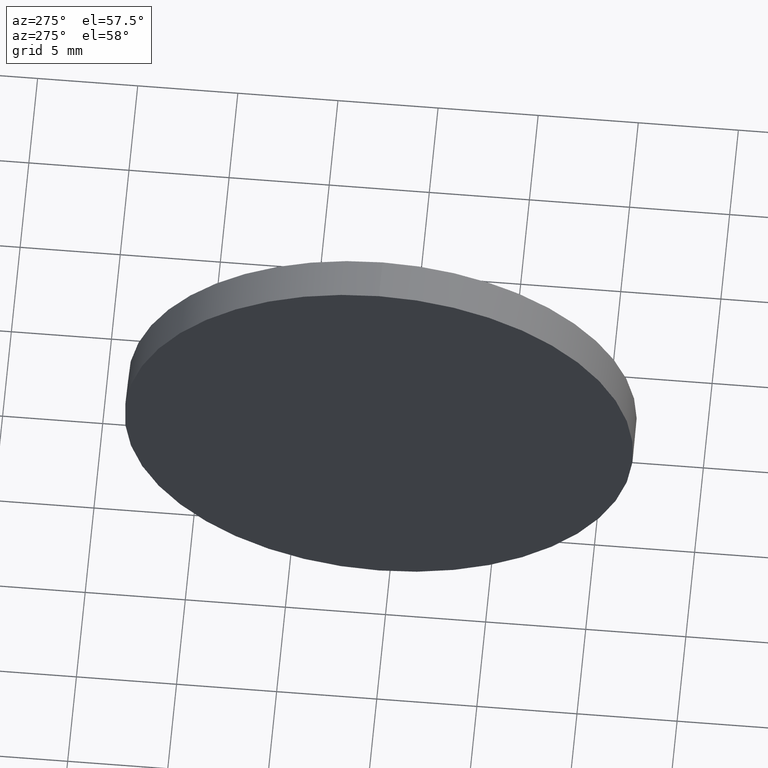
[diagram: clean part render]
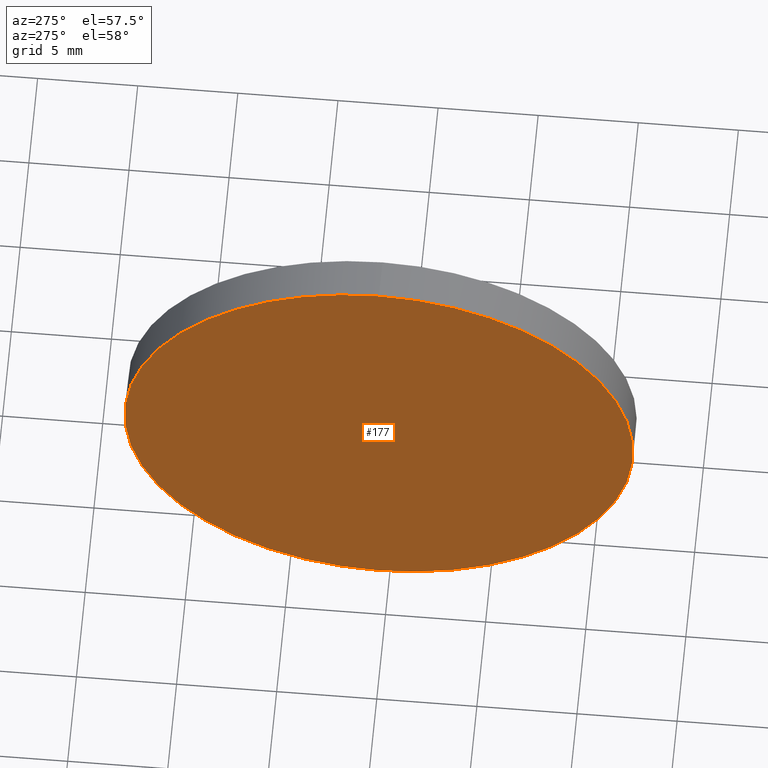
[diagram: same view with one face highlighted and labeled with its STEP entity id]
A machine part, auxiliary view. The second image highlights one B-rep face of the part: STEP entity #177.
In plain terms, the highlighted planar face has unit normal (1, 0, 0).
Its self-contained STEP definition (entity closure, byte-faithful):
#1 = CIRCLE ( 'NONE', #15, 12.70000000000001700 ) ;
#6 = DIRECTION ( 'NONE',  ( -1.000000000000000000, -0.0000000000000000000, -0.0000000000000000000 ) ) ;
#14 = CARTESIAN_POINT ( 'NONE',  ( 452.2168390391796000, 125.5256010425788700, -12.70000000000001700 ) ) ;
#15 = AXIS2_PLACEMENT_3D ( 'NONE', #163, #28, #183 ) ;
#18 = DIRECTION ( 'NONE',  ( 0.0000000000000000000, 0.0000000000000000000, -1.000000000000000000 ) ) ;
#20 = CARTESIAN_POINT ( 'NONE',  ( 452.2168390391796000, 125.5256010425788700, 0.0000000000000000000 ) ) ;
#28 = DIRECTION ( 'NONE',  ( -1.000000000000000000, -0.0000000000000000000, -0.0000000000000000000 ) ) ;
#31 = ORIENTED_EDGE ( 'NONE', *, *, #93, .T. ) ;
#34 = CARTESIAN_POINT ( 'NONE',  ( 452.2168390391796000, 125.5256010425788700, 0.0000000000000000000 ) ) ;
#39 = CARTESIAN_POINT ( 'NONE',  ( 452.2168390391796000, 125.5256010425788700, 12.70000000000001700 ) ) ;
#82 = EDGE_CURVE ( 'NONE', #103, #123, #91, .T. ) ;
#86 = AXIS2_PLACEMENT_3D ( 'NONE', #20, #87, #18 ) ;
#87 = DIRECTION ( 'NONE',  ( 1.000000000000000000, 0.0000000000000000000, 0.0000000000000000000 ) ) ;
#89 = AXIS2_PLACEMENT_3D ( 'NONE', #34, #6, #97 ) ;
#91 = CIRCLE ( 'NONE', #89, 12.70000000000001700 ) ;
#93 = EDGE_CURVE ( 'NONE', #123, #103, #1, .T. ) ;
#97 = DIRECTION ( 'NONE',  ( 0.0000000000000000000, 0.0000000000000000000, 1.000000000000000000 ) ) ;
#103 = VERTEX_POINT ( 'NONE', #14 ) ;
#123 = VERTEX_POINT ( 'NONE', #39 ) ;
#147 = PLANE ( 'NONE',  #86 ) ;
#150 = FACE_OUTER_BOUND ( 'NONE', #153, .T. ) ;
#153 = EDGE_LOOP ( 'NONE', ( #31, #154 ) ) ;
#154 = ORIENTED_EDGE ( 'NONE', *, *, #82, .T. ) ;
#163 = CARTESIAN_POINT ( 'NONE',  ( 452.2168390391796000, 125.5256010425788700, 0.0000000000000000000 ) ) ;
#177 = ADVANCED_FACE ( 'NONE', ( #150 ), #147, .F. ) ;
#183 = DIRECTION ( 'NONE',  ( 0.0000000000000000000, 0.0000000000000000000, 1.000000000000000000 ) ) ;